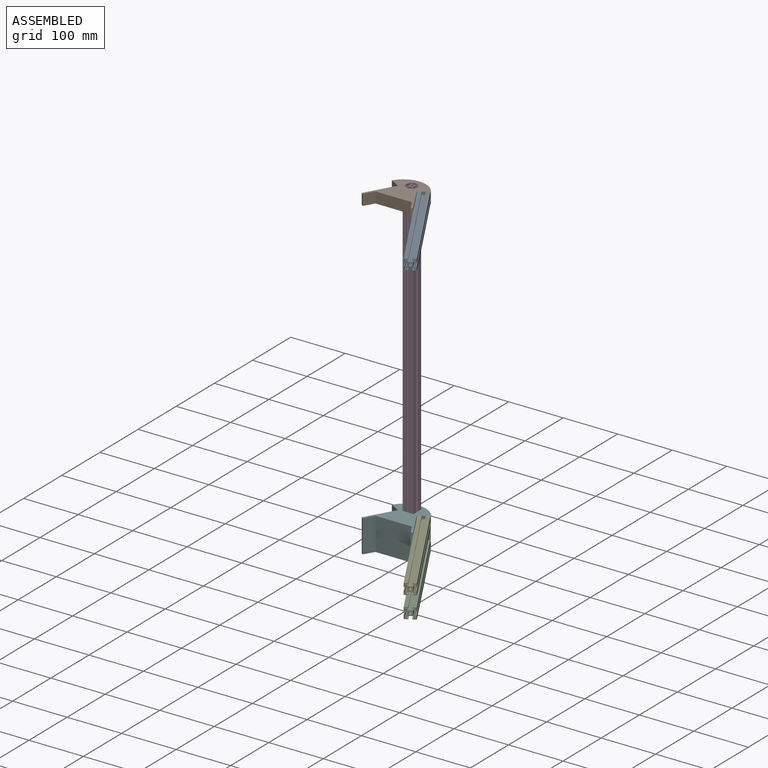
[diagram: assembled view]
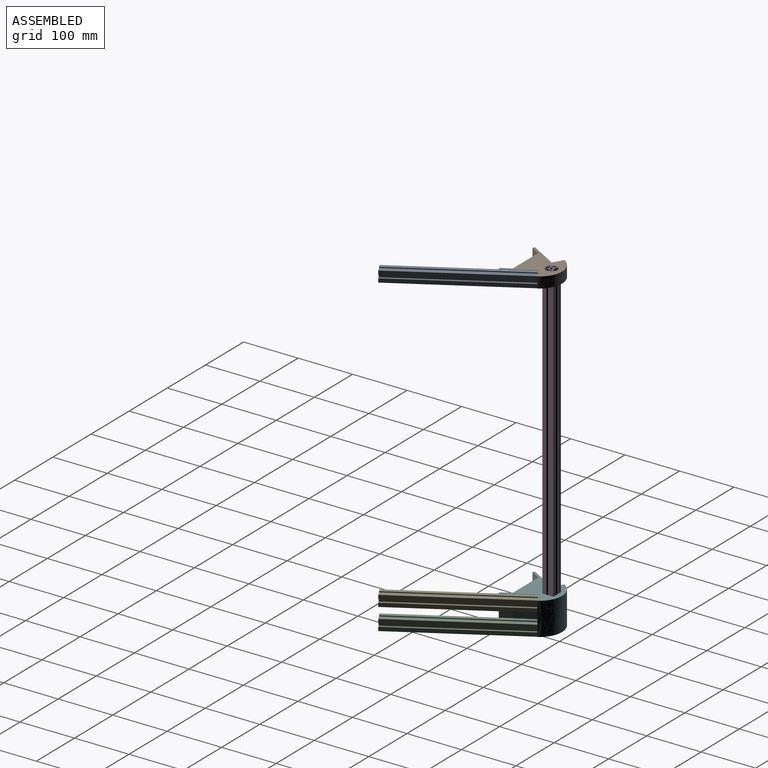
[diagram: assembled view, second angle]
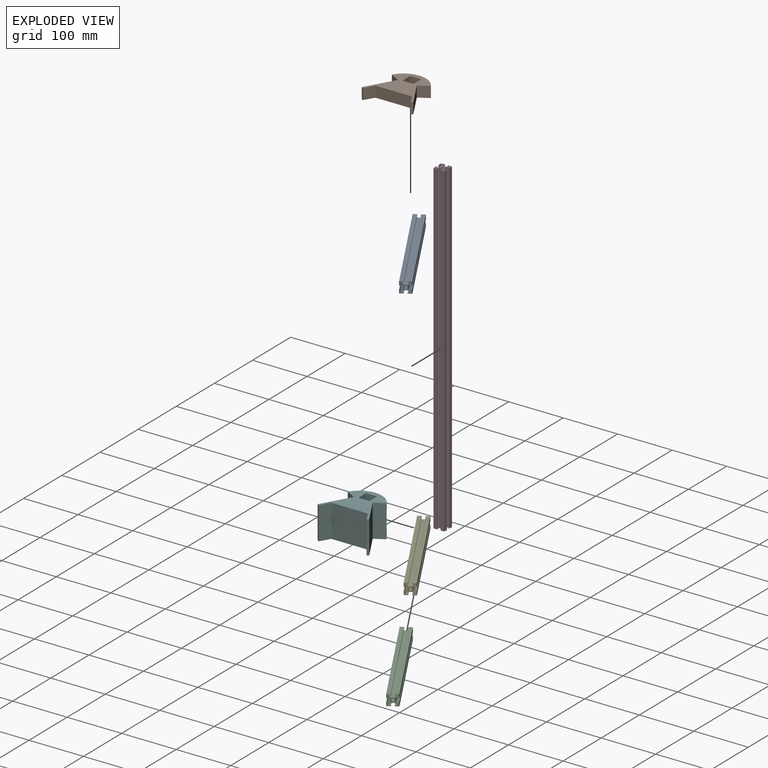
[diagram: exploded view]
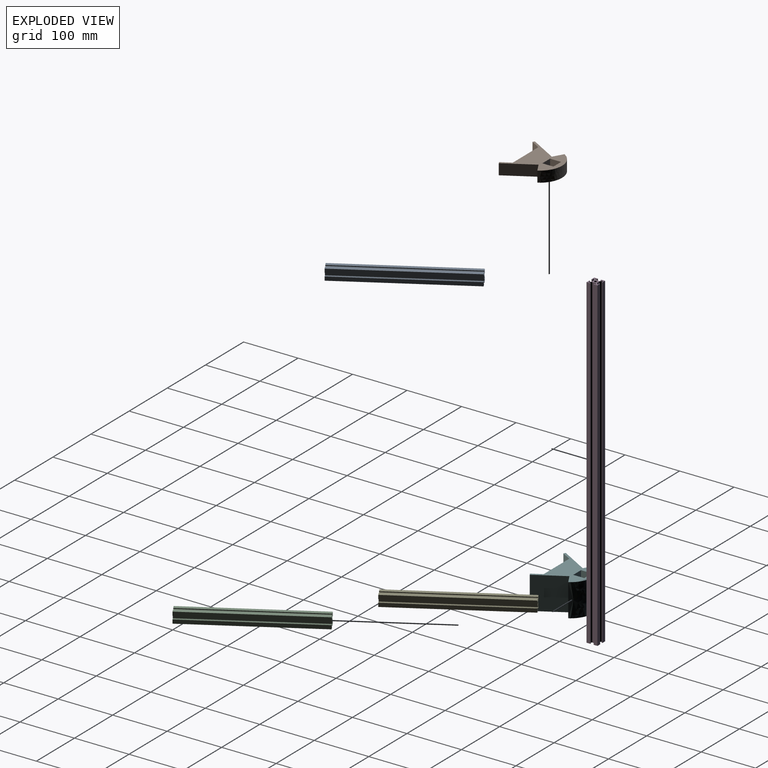
[diagram: exploded view, second angle]
ASSEMBLY  parts=6 mates=5
PART A: 39 faces, bbox 20x20x240 mm
  f0: plane 240x4mm, normal (-0.71,-0.71,0), area 1357.6mm2, adj f1,f35,f37,f38
  f1: plane 240x6.94mm, normal (-1,0,0), area 1665.2mm2, adj f0,f2,f37,f38
  f2: plane 240x4mm, normal (-0.71,0.71,0), area 1357.6mm2, adj f1,f3,f37,f38
  f3: plane 240x4.47mm, normal (1,0,0), area 1072.6mm2, adj f2,f4,f37,f38
  f4: plane 240x1.5mm, normal (0,1,0), area 360mm2, adj f3,f5,f37,f38
  f5: plane 240x7mm, normal (-1,0,0), area 1680mm2, adj f4,f6,f37,f38
  f6: plane 240x7mm, normal (0,-1,0), area 1680mm2, adj f5,f7,f37,f38
  f7: plane 240x1.5mm, normal (1,0,0), area 360mm2, adj f6,f8,f37,f38
  f8: plane 240x4.47mm, normal (0,1,0), area 1072.6mm2, adj f7,f9,f37,f38
  f9: plane 240x4mm, normal (0.71,-0.71,0), area 1357.6mm2, adj f8,f10,f37,f38
  f10: plane 240x6.94mm, normal (0,-1,0), area 1665.2mm2, adj f9,f11,f37,f38
  f11: plane 240x4mm, normal (-0.71,-0.71,0), area 1357.6mm2, adj f10,f12,f37,f38
  f12: plane 240x4.47mm, normal (0,1,0), area 1072.6mm2, adj f11,f13,f37,f38
  f13: plane 240x1.5mm, normal (-1,0,0), area 360mm2, adj f12,f14,f37,f38
  f14: plane 240x7mm, normal (0,-1,0), area 1680mm2, adj f13,f15,f37,f38
  f15: plane 240x7mm, normal (1,0,0), area 1680mm2, adj f14,f16,f37,f38
  f16: plane 240x1.5mm, normal (0,1,0), area 360mm2, adj f15,f17,f37,f38
  f17: plane 240x4.47mm, normal (-1,0,0), area 1072.6mm2, adj f16,f18,f37,f38
  f18: plane 240x4mm, normal (0.71,0.71,0), area 1357.6mm2, adj f17,f19,f37,f38
  f19: plane 240x6.94mm, normal (1,0,0), area 1665.2mm2, adj f18,f20,f37,f38
  f20: plane 240x4mm, normal (0.71,-0.71,0), area 1357.6mm2, adj f19,f21,f37,f38
  f21: plane 240x4.47mm, normal (-1,0,0), area 1072.6mm2, adj f20,f22,f37,f38
  f22: plane 240x1.5mm, normal (0,-1,0), area 360mm2, adj f21,f23,f37,f38
  f23: plane 240x7mm, normal (1,0,0), area 1680mm2, adj f22,f24,f37,f38
  f24: plane 240x7mm, normal (0,1,0), area 1680mm2, adj f23,f25,f37,f38
  f25: plane 240x1.5mm, normal (-1,0,0), area 360mm2, adj f24,f26,f37,f38
  f26: plane 240x4.47mm, normal (0,-1,0), area 1072.6mm2, adj f25,f27,f37,f38
  f27: plane 240x4mm, normal (-0.71,0.71,0), area 1357.6mm2, adj f26,f28,f37,f38
  f28: plane 240x6.94mm, normal (0,1,0), area 1665.2mm2, adj f27,f29,f37,f38
  f29: plane 240x4mm, normal (0.71,0.71,0), area 1357.6mm2, adj f28,f30,f37,f38
  f30: plane 240x4.47mm, normal (0,-1,0), area 1072.6mm2, adj f29,f31,f37,f38
  f31: plane 240x1.5mm, normal (1,0,0), area 360mm2, adj f30,f32,f37,f38
  f32: plane 240x7mm, normal (0,1,0), area 1680mm2, adj f31,f33,f37,f38
  f33: plane 240x7mm, normal (-1,0,0), area 1680mm2, adj f32,f34,f37,f38
  f34: plane 240x1.5mm, normal (0,-1,0), area 360mm2, adj f33,f35,f37,f38
  f35: plane 240x4.47mm, normal (1,0,0), area 1072.6mm2, adj f0,f34,f37,f38
  f36: cylinder r=2.75mm len=240mm, axis (0,0,-1), area 4146.9mm2, adj f37,f38
  f37: plane 20x20mm, normal (0,0,1), area 165.2mm2, adj f0,f1,f2,f3,f4,f5,f6,f7
  f38: plane 20x20mm, normal (0,0,-1), area 165.2mm2, adj f0,f1,f2,f3,f4,f5,f6,f7
PART B: 16 faces, bbox 94.7x86.1x20 mm
  f0: extruded ~71.27x20.57mm, area 1722.7mm2, adj f1,f13,f14,f15
  f1: plane 20x18.27mm, normal (-0.5,-0.87,0), area 422.1mm2, adj f0,f2,f14,f15
  f2: plane 51.93x29.97mm, normal (-0.87,0.5,0), area 1199.2mm2, adj f1,f3,f14,f15
  f3: plane 20x3.46mm, normal (-0.5,-0.87,0), area 79.9mm2, adj f2,f4,f14,f15
  f4: plane 20x18mm, normal (0.86,-0.5,0), area 416.6mm2, adj f3,f5,f14,f15
  f5: plane 66.91x20mm, normal (0,-1,0), area 1338.2mm2, adj f4,f6,f14,f15
  f6: plane 20x17.97mm, normal (-0.87,-0.5,0), area 414.9mm2, adj f5,f7,f14,f15
  f7: plane 20x3.48mm, normal (0.5,-0.87,0), area 80.2mm2, adj f6,f8,f14,f15
  f8: plane 51.89x30.01mm, normal (0.87,0.5,0), area 1198.9mm2, adj f7,f13,f14,f15
  f9: plane 20.2x20mm, normal (0,1,0), area 404mm2, adj f10,f12,f14,f15
  f10: plane 20.2x20mm, normal (1,0,0), area 404mm2, adj f9,f11,f14,f15
  f11: plane 20.2x20mm, normal (0,-1,0), area 404mm2, adj f10,f12,f14,f15
  f12: plane 20.2x20mm, normal (-1,0,0), area 404mm2, adj f9,f11,f14,f15
  f13: plane 20x18.27mm, normal (0.5,-0.86,0), area 422.6mm2, adj f0,f8,f14,f15
  f14: plane 94.71x86.09mm, normal (0,0,1), area 3341.2mm2, adj f0,f1,f2,f3,f4,f5,f6,f7
  f15: plane 94.71x86.09mm, normal (0,0,-1), area 3341.2mm2, adj f0,f1,f2,f3,f4,f5,f6,f7
PART C: same geometry as A
PART D: 39 faces, bbox 20x20x598 mm
  f0: plane 598x4mm, normal (-0.71,-0.71,0), area 3382.8mm2, adj f1,f35,f37,f38
  f1: plane 598x6.94mm, normal (-1,0,0), area 4149.1mm2, adj f0,f2,f37,f38
  f2: plane 598x4mm, normal (-0.71,0.71,0), area 3382.8mm2, adj f1,f3,f37,f38
  f3: plane 598x4.47mm, normal (1,0,0), area 2672.5mm2, adj f2,f4,f37,f38
  f4: plane 598x1.5mm, normal (0,1,0), area 897mm2, adj f3,f5,f37,f38
  f5: plane 598x7mm, normal (-1,0,0), area 4186mm2, adj f4,f6,f37,f38
  f6: plane 598x7mm, normal (0,-1,0), area 4186mm2, adj f5,f7,f37,f38
  f7: plane 598x1.5mm, normal (1,0,0), area 897mm2, adj f6,f8,f37,f38
  f8: plane 598x4.47mm, normal (0,1,0), area 2672.5mm2, adj f7,f9,f37,f38
  f9: plane 598x4mm, normal (0.71,-0.71,0), area 3382.8mm2, adj f8,f10,f37,f38
  f10: plane 598x6.94mm, normal (0,-1,0), area 4149.1mm2, adj f9,f11,f37,f38
  f11: plane 598x4mm, normal (-0.71,-0.71,0), area 3382.8mm2, adj f10,f12,f37,f38
  f12: plane 598x4.47mm, normal (0,1,0), area 2672.5mm2, adj f11,f13,f37,f38
  f13: plane 598x1.5mm, normal (-1,0,0), area 897mm2, adj f12,f14,f37,f38
  f14: plane 598x7mm, normal (0,-1,0), area 4186mm2, adj f13,f15,f37,f38
  f15: plane 598x7mm, normal (1,0,0), area 4186mm2, adj f14,f16,f37,f38
  f16: plane 598x1.5mm, normal (0,1,0), area 897mm2, adj f15,f17,f37,f38
  f17: plane 598x4.47mm, normal (-1,0,0), area 2672.5mm2, adj f16,f18,f37,f38
  f18: plane 598x4mm, normal (0.71,0.71,0), area 3382.8mm2, adj f17,f19,f37,f38
  f19: plane 598x6.94mm, normal (1,0,0), area 4149.1mm2, adj f18,f20,f37,f38
  f20: plane 598x4mm, normal (0.71,-0.71,0), area 3382.8mm2, adj f19,f21,f37,f38
  f21: plane 598x4.47mm, normal (-1,0,0), area 2672.5mm2, adj f20,f22,f37,f38
  f22: plane 598x1.5mm, normal (0,-1,0), area 897mm2, adj f21,f23,f37,f38
  f23: plane 598x7mm, normal (1,0,0), area 4186mm2, adj f22,f24,f37,f38
  f24: plane 598x7mm, normal (0,1,0), area 4186mm2, adj f23,f25,f37,f38
  f25: plane 598x1.5mm, normal (-1,0,0), area 897mm2, adj f24,f26,f37,f38
  f26: plane 598x4.47mm, normal (0,-1,0), area 2672.5mm2, adj f25,f27,f37,f38
  f27: plane 598x4mm, normal (-0.71,0.71,0), area 3382.8mm2, adj f26,f28,f37,f38
  f28: plane 598x6.94mm, normal (0,1,0), area 4149.1mm2, adj f27,f29,f37,f38
  f29: plane 598x4mm, normal (0.71,0.71,0), area 3382.8mm2, adj f28,f30,f37,f38
  f30: plane 598x4.47mm, normal (0,-1,0), area 2672.5mm2, adj f29,f31,f37,f38
  f31: plane 598x1.5mm, normal (1,0,0), area 897mm2, adj f30,f32,f37,f38
  f32: plane 598x7mm, normal (0,1,0), area 4186mm2, adj f31,f33,f37,f38
  f33: plane 598x7mm, normal (-1,0,0), area 4186mm2, adj f32,f34,f37,f38
  f34: plane 598x1.5mm, normal (0,-1,0), area 897mm2, adj f33,f35,f37,f38
  f35: plane 598x4.47mm, normal (1,0,0), area 2672.5mm2, adj f0,f34,f37,f38
  f36: cylinder r=2.75mm len=598mm, axis (0,0,-1), area 10332.7mm2, adj f37,f38
  f37: plane 20x20mm, normal (0,0,1), area 165.2mm2, adj f0,f1,f2,f3,f4,f5,f6,f7
  f38: plane 20x20mm, normal (0,0,-1), area 165.2mm2, adj f0,f1,f2,f3,f4,f5,f6,f7
PART E: same geometry as A
PART F: 16 faces, bbox 94.7x86.1x60 mm
  f0: extruded ~71.27x60mm, area 5168.1mm2, adj f1,f13,f14,f15
  f1: plane 60x18.27mm, normal (-0.5,-0.87,0), area 1266.4mm2, adj f0,f2,f14,f15
  f2: plane 60x51.93mm, normal (-0.87,0.5,0), area 3597.6mm2, adj f1,f3,f14,f15
  f3: plane 60x3.46mm, normal (-0.5,-0.87,0), area 239.6mm2, adj f2,f4,f14,f15
  f4: plane 60x18mm, normal (0.86,-0.5,0), area 1249.9mm2, adj f3,f5,f14,f15
  f5: plane 66.91x60mm, normal (0,-1,0), area 4014.6mm2, adj f4,f6,f14,f15
  f6: plane 60x17.97mm, normal (-0.87,-0.5,0), area 1244.8mm2, adj f5,f7,f14,f15
  f7: plane 60x3.48mm, normal (0.5,-0.87,0), area 240.6mm2, adj f6,f8,f14,f15
  f8: plane 60x51.89mm, normal (0.87,0.5,0), area 3596.7mm2, adj f7,f13,f14,f15
  f9: plane 60x20.2mm, normal (0,1,0), area 1212mm2, adj f10,f12,f14,f15
  f10: plane 60x20.2mm, normal (1,0,0), area 1212mm2, adj f9,f11,f14,f15
  f11: plane 60x20.2mm, normal (0,-1,0), area 1212mm2, adj f10,f12,f14,f15
  f12: plane 60x20.2mm, normal (-1,0,0), area 1212mm2, adj f9,f11,f14,f15
  f13: plane 60x18.27mm, normal (0.5,-0.86,0), area 1267.7mm2, adj f0,f8,f14,f15
  f14: plane 94.71x86.09mm, normal (0,0,1), area 3341.2mm2, adj f0,f1,f2,f3,f4,f5,f6,f7
  f15: plane 94.71x86.09mm, normal (0,0,-1), area 3341.2mm2, adj f0,f1,f2,f3,f4,f5,f6,f7
PLACE A rot(axis=(-0.93,-0.25,0.25),93.9deg) t=(100.75,-256.86,615.85)mm
PLACE B t=(-11.65,-45.89,605.85)mm
PLACE C rot(axis=(0.19,-0.69,-0.69),158.8deg) t=(169.93,-216.69,37.85)mm
PLACE D t=(-11.69,-22.59,27.85)mm
PLACE E rot(axis=(-0.93,-0.25,0.25),93.9deg) t=(100.75,-256.86,77.85)mm
PLACE F t=(-111.65,-45.89,27.85)mm
MATE fastened E.f36 <-> F.f13  axis (-0.5,0.86,0) through (14.84,-29.22,77.85)mm
MATE fastened A.f36 <-> B.f13  axis (-0.5,0.86,0) through (14.84,-29.22,615.85)mm
MATE fastened B.f14 <-> D.f36  axis (0,0,-1) through (-11.69,-22.59,625.85)mm
MATE fastened F.f15 <-> D.f36  axis (0,0,-1) through (-11.69,-22.59,27.85)mm
MATE fastened C.f36 <-> F.f13  axis (-0.5,0.86,0) through (14.84,-29.22,37.85)mm
